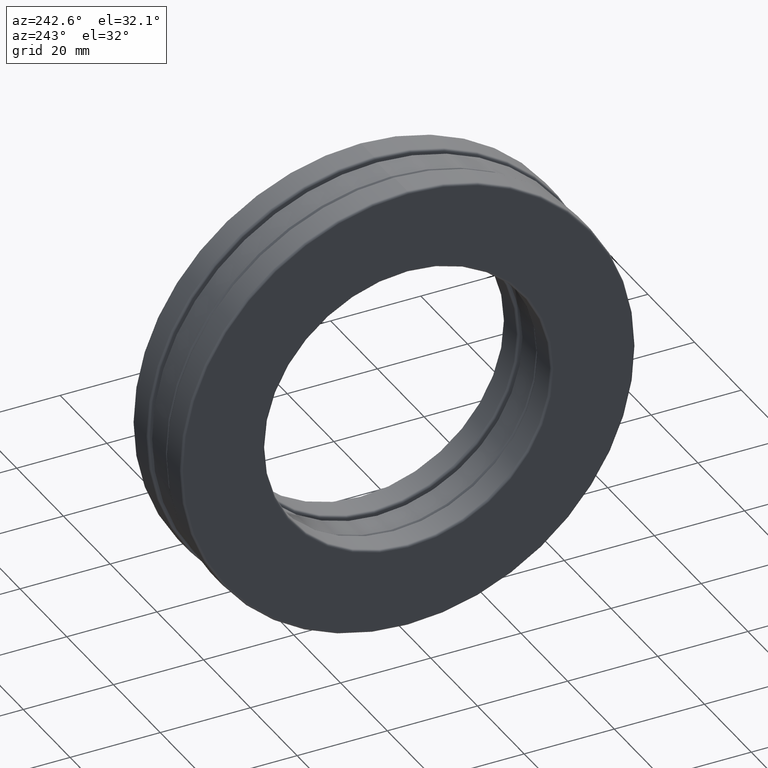
[diagram: clean part render]
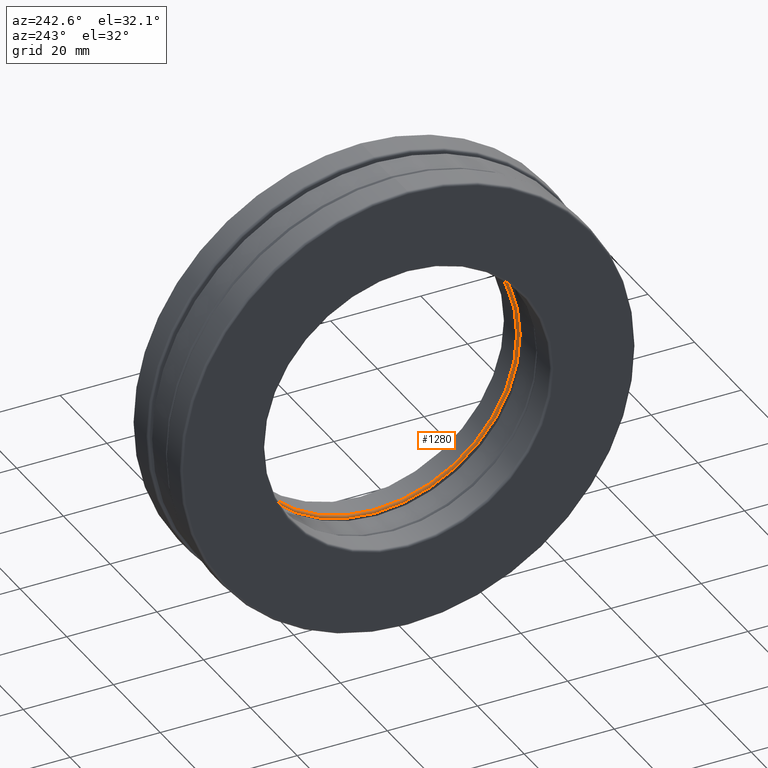
[diagram: same view with one face highlighted and labeled with its STEP entity id]
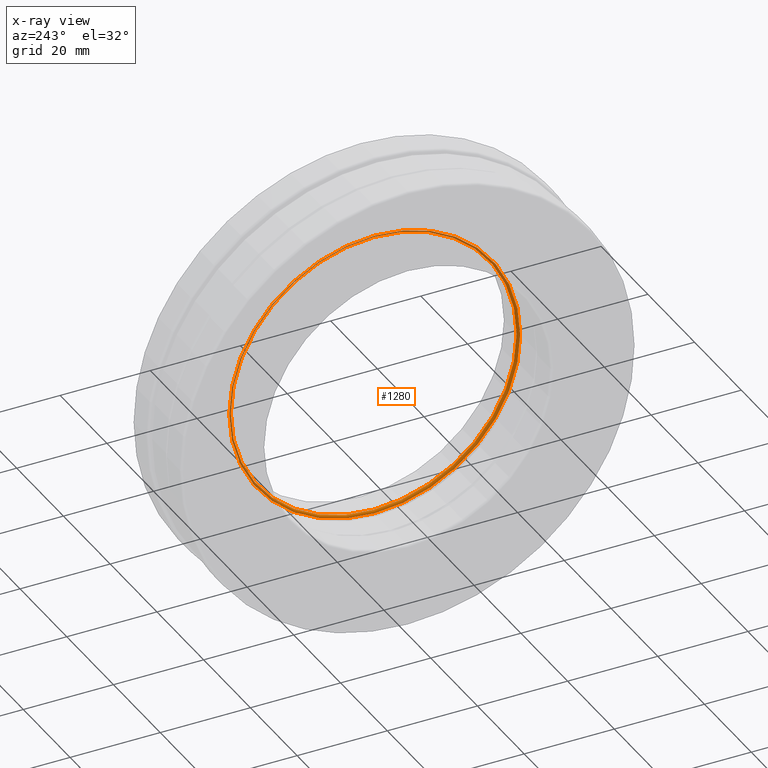
[diagram: x-ray of the same camera — body ghosted, the highlighted face saturated]
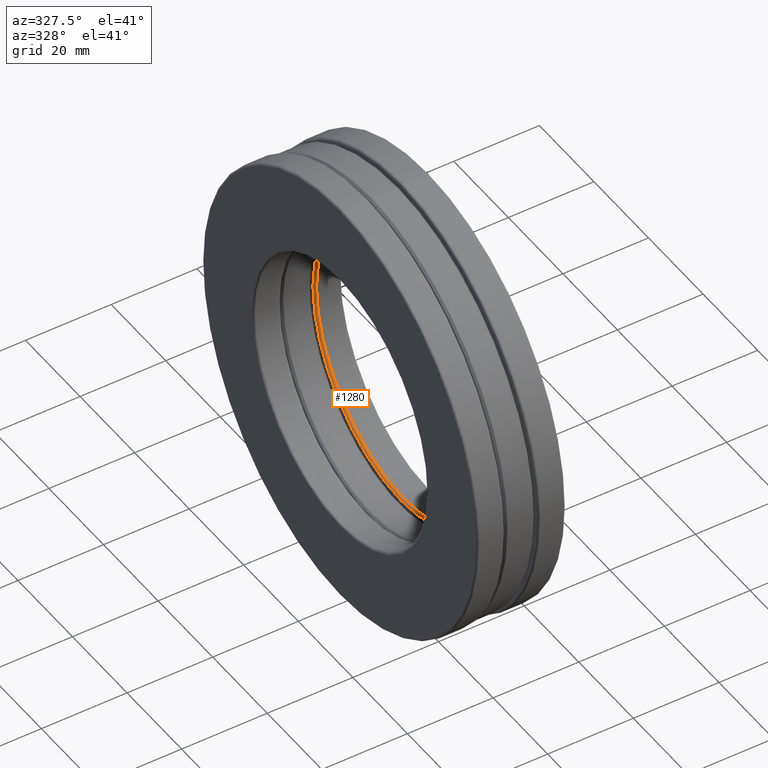
[diagram: same view with one face highlighted and labeled with its STEP entity id]
A machine part, auxiliary view. The second image highlights one B-rep face of the part: STEP entity #1280.
The next image is the same camera in x-ray: the body ghosted, the highlighted face saturated — about 35% of this face is hidden behind the body in this view.
A second angle (auxiliary view) of the same face is appended — the face is thin or edge-on in the first view.
In plain terms, the highlighted toroidal blend (fillet) surface has major radius 32.258 mm and minor (blend) radius 0.508 mm.
Its self-contained STEP definition (entity closure, byte-faithful):
#58 = DIRECTION ( 'NONE',  ( 0.0000000000000000000, 0.0000000000000000000, 1.000000000000000000 ) ) ;
#367 = DIRECTION ( 'NONE',  ( -1.000000000000000000, -0.0000000000000000000, -0.0000000000000000000 ) ) ;
#399 = CARTESIAN_POINT ( 'NONE',  ( 0.1559999999999999400, 0.0000000000000000000, 0.0000000000000000000 ) ) ;
#483 = DIRECTION ( 'NONE',  ( 0.0000000000000000000, 0.0000000000000000000, 1.000000000000000000 ) ) ;
#496 = TOROIDAL_SURFACE ( 'NONE', #626, 1.270000000000000000, 0.02000000000000007700 ) ;
#626 = AXIS2_PLACEMENT_3D ( 'NONE', #706, #367, #483 ) ;
#706 = CARTESIAN_POINT ( 'NONE',  ( 0.1760000000000000500, 0.0000000000000000000, 0.0000000000000000000 ) ) ;
#762 = DIRECTION ( 'NONE',  ( -1.000000000000000000, -0.0000000000000000000, -0.0000000000000000000 ) ) ;
#775 = AXIS2_PLACEMENT_3D ( 'NONE', #399, #870, #1418 ) ;
#784 = EDGE_LOOP ( 'NONE', ( #1359 ) ) ;
#870 = DIRECTION ( 'NONE',  ( -1.000000000000000000, -0.0000000000000000000, -0.0000000000000000000 ) ) ;
#934 = AXIS2_PLACEMENT_3D ( 'NONE', #1086, #762, #58 ) ;
#945 = ORIENTED_EDGE ( 'NONE', *, *, #1016, .F. ) ;
#982 = FACE_OUTER_BOUND ( 'NONE', #784, .T. ) ;
#986 = CARTESIAN_POINT ( 'NONE',  ( 0.1760000000000000500, 0.0000000000000000000, 1.250000000000000000 ) ) ;
#997 = VERTEX_POINT ( 'NONE', #1323 ) ;
#1016 = EDGE_CURVE ( 'NONE', #1229, #1229, #1267, .T. ) ;
#1020 = EDGE_CURVE ( 'NONE', #997, #997, #1066, .T. ) ;
#1066 = CIRCLE ( 'NONE', #775, 1.270000000000000000 ) ;
#1086 = CARTESIAN_POINT ( 'NONE',  ( 0.1760000000000000500, 0.0000000000000000000, 0.0000000000000000000 ) ) ;
#1124 = EDGE_LOOP ( 'NONE', ( #945 ) ) ;
#1229 = VERTEX_POINT ( 'NONE', #986 ) ;
#1267 = CIRCLE ( 'NONE', #934, 1.250000000000000000 ) ;
#1280 = ADVANCED_FACE ( 'NONE', ( #982, #1357 ), #496, .T. ) ;
#1323 = CARTESIAN_POINT ( 'NONE',  ( 0.1559999999999999400, 0.0000000000000000000, 1.270000000000000000 ) ) ;
#1357 = FACE_OUTER_BOUND ( 'NONE', #1124, .T. ) ;
#1359 = ORIENTED_EDGE ( 'NONE', *, *, #1020, .T. ) ;
#1418 = DIRECTION ( 'NONE',  ( 0.0000000000000000000, 0.0000000000000000000, 1.000000000000000000 ) ) ;